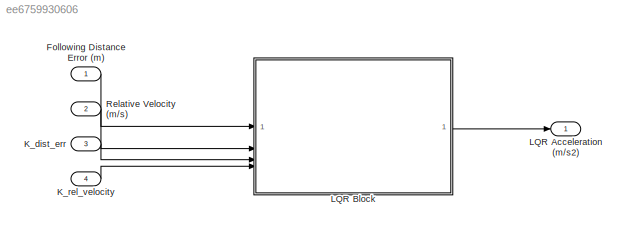
MODEL slx_ee6759930606
KIND model
CONFIG AbsTol = auto
CONFIG EnableMultiTasking = off
CONFIG FixedStep = 0.05
CONFIG MaxStep = auto
CONFIG MinStep = auto
CONFIG RelTol = 1e-3
CONFIG SampleTimeConstraint = Unconstrained
CONFIG SolverName = FixedStepDiscrete
CONFIG StartTime = 0.0
CONFIG StopTime = 10.0
BLOCK [Inport] Following Distance Error (m)
BLOCK [Inport] K_dist_err
  Port = 3
BLOCK [Inport] K_rel_velocity
  Port = 4
BLOCK [Outport] LQR Acceleration (m//s2)
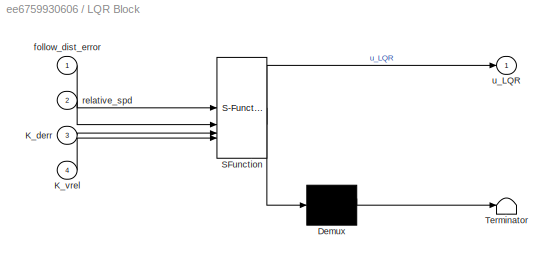
BLOCK [SubSystem] LQR Block
  ErrorFcn = Stateflow.Translate.translate
  PermitHierarchicalResolution = ExplicitOnly
  SFBlockType = MATLAB Function
  SystemSampleTime = simStepSize
  TreatAsAtomicUnit = on
BLOCK [Demux] LQR Block/ Demux 
  Outputs = 1
BLOCK [S-Function] LQR Block/ SFunction 
  EnableBusSupport = on
  FunctionName = sf_sfun
  PortCounts = [4 2]
  SFcnIsStateOwnerBlock = off
  SFunctionDeploymentMode = off
  Tag = Stateflow S-Function 1
BLOCK [Terminator] LQR Block/ Terminator 
BLOCK [Inport] LQR Block/K_derr
  Port = 3
BLOCK [Inport] LQR Block/K_vrel
  Port = 4
BLOCK [Inport] LQR Block/follow_dist_error
BLOCK [Inport] LQR Block/relative_spd
  Port = 2
BLOCK [Outport] LQR Block/u_LQR
BLOCK [Inport] Relative Velocity (m//s)
  Port = 2
LINE Following Distance Error (m):1 -> LQR Block:1
LINE K_dist_err:1 -> LQR Block:3
LINE K_rel_velocity:1 -> LQR Block:4
LINE LQR Block:1 -> LQR Acceleration (m//s2):1
LINE Relative Velocity (m//s):1 -> LQR Block:2
CHART LQR Block states=1 transitions=1
  STATE_LABEL 'eML_blk_kernel()'
  STATE_LABEL 'SCRIPT:\n function u_LQR = fcn(follow_dist_error, relative_spd, K_derr, K_vrel)\nu_LQR = -K_derr*follow_dist_error-K_vrel*relative_spd;\n'
CHART  states=0 transitions=0
